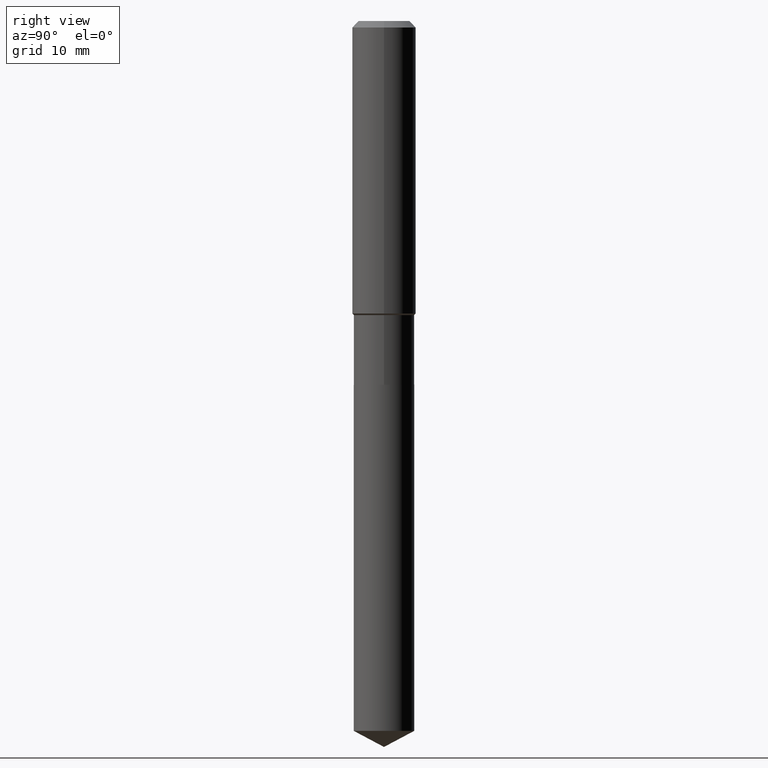
[diagram: clean part render]
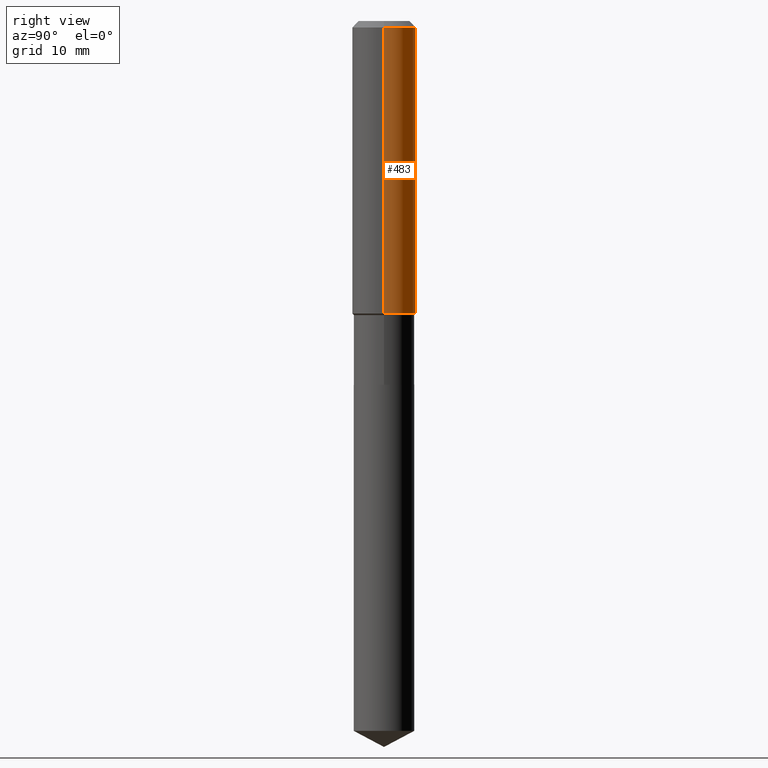
[diagram: same view with one face highlighted and labeled with its STEP entity id]
A machine part, right view. The second image highlights one B-rep face of the part: STEP entity #483.
In plain terms, the highlighted cylindrical surface (edge-blend (fillet) strip) has radius 4.0005 mm, axis along (-0, 0, 1).
Its self-contained STEP definition (entity closure, byte-faithful):
#15 = CARTESIAN_POINT ( 'NONE',  ( 7.703226739483226971E-31, -1.099816621735597538E-16, -0.03150000000000019451 ) ) ;
#17 = VERTEX_POINT ( 'NONE', #82 ) ;
#19 = CARTESIAN_POINT ( 'NONE',  ( 3.529545127967007664E-29, -5.039255016352311783E-15, -1.443299999999999805 ) ) ;
#39 = ORIENTED_EDGE ( 'NONE', *, *, #463, .F. ) ;
#43 = VERTEX_POINT ( 'NONE', #303 ) ;
#45 = DIRECTION ( 'NONE',  ( -2.445468806185136597E-29, 3.491481338843145583E-15, 1.000000000000000000 ) ) ;
#50 = DIRECTION ( 'NONE',  ( 1.000000000000000000, -6.982962677686267499E-15, 4.876176775795936353E-29 ) ) ;
#69 = DIRECTION ( 'NONE',  ( -2.445468806185136877E-29, 3.491481338843145188E-15, 1.000000000000000000 ) ) ;
#81 = DIRECTION ( 'NONE',  ( -2.445468806185136597E-29, 3.491481338843145583E-15, 1.000000000000000000 ) ) ;
#82 = CARTESIAN_POINT ( 'NONE',  ( 0.1575000000000001676, -6.139071638087900053E-15, -1.443299999999999805 ) ) ;
#100 = LINE ( 'NONE', #409, #171 ) ;
#109 = EDGE_CURVE ( 'NONE', #17, #43, #203, .T. ) ;
#111 = VECTOR ( 'NONE', #393, 39.37007874015748143 ) ;
#117 = VERTEX_POINT ( 'NONE', #478 ) ;
#119 = CYLINDRICAL_SURFACE ( 'NONE', #251, 0.1575000000000000844 ) ;
#171 = VECTOR ( 'NONE', #69, 39.37007874015748143 ) ;
#200 = EDGE_LOOP ( 'NONE', ( #211, #232, #39, #363 ) ) ;
#202 = CARTESIAN_POINT ( 'NONE',  ( 0.1575000000000000011, -1.209798283909146741E-15, -0.03150000000000019451 ) ) ;
#203 = CIRCLE ( 'NONE', #459, 0.1575000000000001676 ) ;
#211 = ORIENTED_EDGE ( 'NONE', *, *, #109, .T. ) ;
#223 = DIRECTION ( 'NONE',  ( 1.000000000000000000, -6.982962677686265922E-15, 0.000000000000000000 ) ) ;
#232 = ORIENTED_EDGE ( 'NONE', *, *, #398, .T. ) ;
#249 = EDGE_CURVE ( 'NONE', #17, #260, #438, .T. ) ;
#251 = AXIS2_PLACEMENT_3D ( 'NONE', #466, #81, #50 ) ;
#260 = VERTEX_POINT ( 'NONE', #202 ) ;
#303 = CARTESIAN_POINT ( 'NONE',  ( -0.1575000000000001676, -3.920150207530152602E-15, -1.443299999999999805 ) ) ;
#363 = ORIENTED_EDGE ( 'NONE', *, *, #249, .F. ) ;
#385 = FACE_OUTER_BOUND ( 'NONE', #200, .T. ) ;
#390 = DIRECTION ( 'NONE',  ( -2.445468806185136597E-29, 3.491481338843145583E-15, 1.000000000000000000 ) ) ;
#393 = DIRECTION ( 'NONE',  ( -2.445468806185136877E-29, 3.491481338843145188E-15, 1.000000000000000000 ) ) ;
#395 = CIRCLE ( 'NONE', #450, 0.1575000000000000011 ) ;
#397 = CARTESIAN_POINT ( 'NONE',  ( 0.1575000000000000844, -1.099816621735587677E-15, 7.679978421878603638E-30 ) ) ;
#398 = EDGE_CURVE ( 'NONE', #43, #117, #100, .T. ) ;
#409 = CARTESIAN_POINT ( 'NONE',  ( -0.1575000000000000844, 1.119104808822158392E-15, -7.747322767151481189E-30 ) ) ;
#438 = LINE ( 'NONE', #397, #111 ) ;
#450 = AXIS2_PLACEMENT_3D ( 'NONE', #15, #45, #223 ) ;
#459 = AXIS2_PLACEMENT_3D ( 'NONE', #19, #390, #476 ) ;
#463 = EDGE_CURVE ( 'NONE', #260, #117, #395, .T. ) ;
#466 = CARTESIAN_POINT ( 'NONE',  ( 0.000000000000000000, 0.000000000000000000, 0.000000000000000000 ) ) ;
#476 = DIRECTION ( 'NONE',  ( 1.000000000000000000, -6.982962677686267499E-15, 0.000000000000000000 ) ) ;
#478 = CARTESIAN_POINT ( 'NONE',  ( -0.1575000000000000011, -1.455513530440777031E-15, -0.03150000000000019451 ) ) ;
#483 = ADVANCED_FACE ( 'NONE', ( #385 ), #119, .T. ) ;